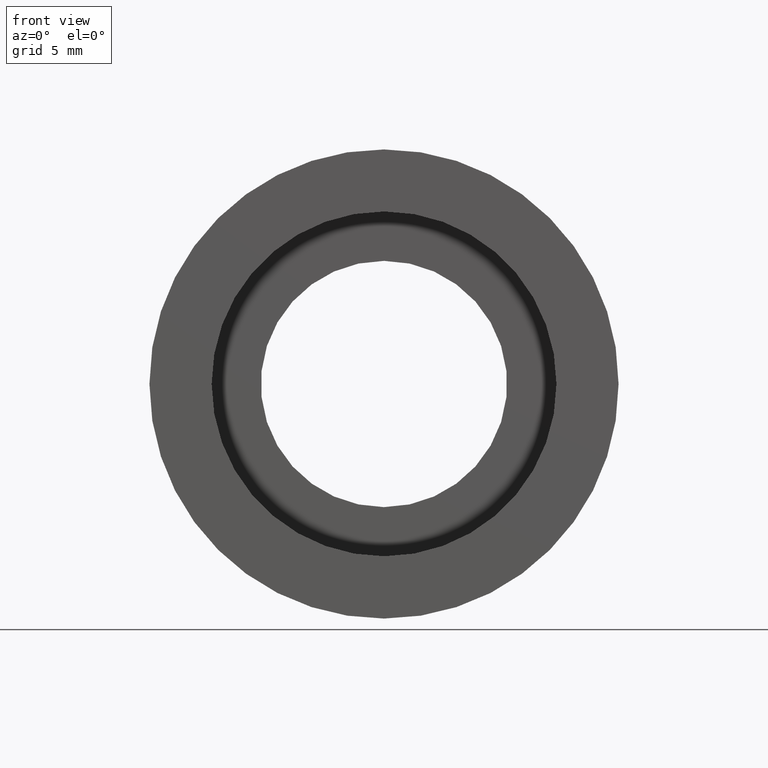
[diagram: clean part render]
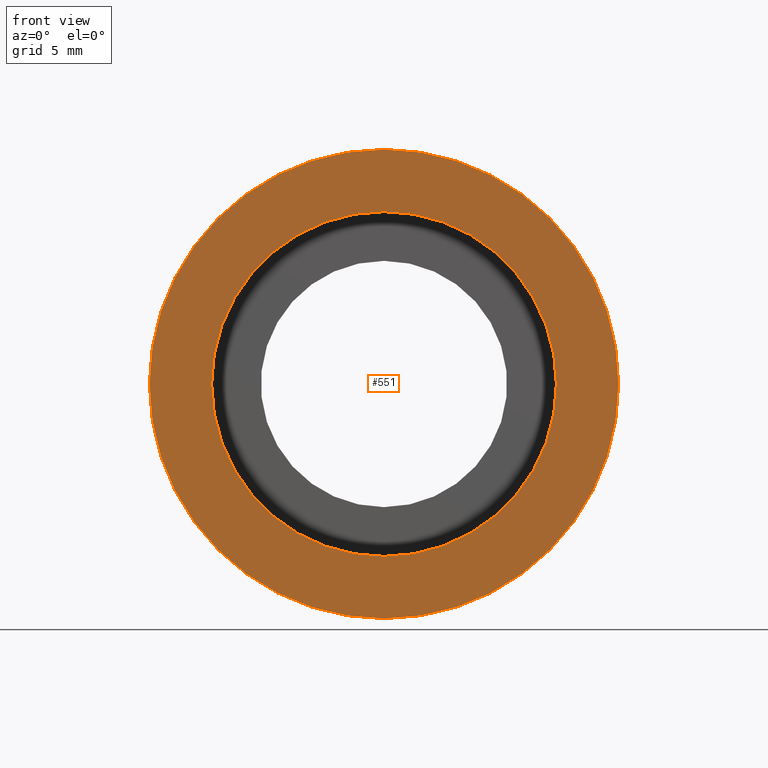
[diagram: same view with one face highlighted and labeled with its STEP entity id]
A machine part, front view. The second image highlights one B-rep face of the part: STEP entity #551.
In plain terms, the highlighted planar face has unit normal (-0, 1, 0).
Its self-contained STEP definition (entity closure, byte-faithful):
#4 = DIRECTION ( 'NONE',  ( -0.0000000000000000000, 1.000000000000000000, -0.0000000000000000000 ) ) ;
#17 = VERTEX_POINT ( 'NONE', #549 ) ;
#67 = DIRECTION ( 'NONE',  ( 0.0000000000000000000, 0.0000000000000000000, 1.000000000000000000 ) ) ;
#69 = ORIENTED_EDGE ( 'NONE', *, *, #465, .F. ) ;
#80 = AXIS2_PLACEMENT_3D ( 'NONE', #567, #571, #577 ) ;
#111 = VERTEX_POINT ( 'NONE', #317 ) ;
#115 = CARTESIAN_POINT ( 'NONE',  ( 7.000000000000019500, -1.650046791174882700E-014, 0.0000000000000000000 ) ) ;
#139 = CARTESIAN_POINT ( 'NONE',  ( 0.0000000000000000000, -2.775557561562891400E-014, 0.0000000000000000000 ) ) ;
#149 = CIRCLE ( 'NONE', #80, 7.000000000000019500 ) ;
#176 = ORIENTED_EDGE ( 'NONE', *, *, #387, .T. ) ;
#203 = EDGE_CURVE ( 'NONE', #538, #17, #575, .T. ) ;
#223 = CARTESIAN_POINT ( 'NONE',  ( 0.0000000000000000000, -2.775557561562891400E-014, 0.0000000000000000000 ) ) ;
#225 = DIRECTION ( 'NONE',  ( -0.0000000000000000000, 1.000000000000000000, -0.0000000000000000000 ) ) ;
#244 = EDGE_LOOP ( 'NONE', ( #176, #612 ) ) ;
#257 = CIRCLE ( 'NONE', #533, 9.525000000000019900 ) ;
#269 = CARTESIAN_POINT ( 'NONE',  ( 0.0000000000000000000, -2.775557561562891400E-014, 0.0000000000000000000 ) ) ;
#273 = DIRECTION ( 'NONE',  ( 0.0000000000000000000, 0.0000000000000000000, 1.000000000000000000 ) ) ;
#296 = DIRECTION ( 'NONE',  ( -0.0000000000000000000, 1.000000000000000000, -0.0000000000000000000 ) ) ;
#307 = CIRCLE ( 'NONE', #344, 9.525000000000019900 ) ;
#310 = DIRECTION ( 'NONE',  ( -0.0000000000000000000, 1.000000000000000000, 0.0000000000000000000 ) ) ;
#317 = CARTESIAN_POINT ( 'NONE',  ( 1.166476076187856400E-015, -2.775557561562891400E-014, -9.525000000000019900 ) ) ;
#340 = EDGE_LOOP ( 'NONE', ( #536, #69 ) ) ;
#344 = AXIS2_PLACEMENT_3D ( 'NONE', #139, #296, #67 ) ;
#365 = EDGE_CURVE ( 'NONE', #444, #111, #257, .T. ) ;
#369 = FACE_OUTER_BOUND ( 'NONE', #340, .T. ) ;
#387 = EDGE_CURVE ( 'NONE', #17, #538, #149, .T. ) ;
#393 = PLANE ( 'NONE',  #541 ) ;
#397 = DIRECTION ( 'NONE',  ( 0.0000000000000000000, 0.0000000000000000000, 1.000000000000000000 ) ) ;
#411 = FACE_BOUND ( 'NONE', #244, .T. ) ;
#414 = AXIS2_PLACEMENT_3D ( 'NONE', #223, #225, #581 ) ;
#444 = VERTEX_POINT ( 'NONE', #493 ) ;
#465 = EDGE_CURVE ( 'NONE', #111, #444, #307, .T. ) ;
#479 = CARTESIAN_POINT ( 'NONE',  ( 8.572527594031495900E-016, -2.775557561562891400E-014, -7.000000000000019500 ) ) ;
#493 = CARTESIAN_POINT ( 'NONE',  ( 0.0000000000000000000, -2.775557561562891400E-014, 9.525000000000019900 ) ) ;
#533 = AXIS2_PLACEMENT_3D ( 'NONE', #269, #4, #273 ) ;
#536 = ORIENTED_EDGE ( 'NONE', *, *, #365, .F. ) ;
#538 = VERTEX_POINT ( 'NONE', #479 ) ;
#541 = AXIS2_PLACEMENT_3D ( 'NONE', #115, #310, #397 ) ;
#549 = CARTESIAN_POINT ( 'NONE',  ( 0.0000000000000000000, -2.775557561562891400E-014, 7.000000000000019500 ) ) ;
#551 = ADVANCED_FACE ( 'NONE', ( #369, #411 ), #393, .F. ) ;
#567 = CARTESIAN_POINT ( 'NONE',  ( 0.0000000000000000000, -2.775557561562891400E-014, 0.0000000000000000000 ) ) ;
#571 = DIRECTION ( 'NONE',  ( -0.0000000000000000000, 1.000000000000000000, -0.0000000000000000000 ) ) ;
#575 = CIRCLE ( 'NONE', #414, 7.000000000000019500 ) ;
#577 = DIRECTION ( 'NONE',  ( 0.0000000000000000000, 0.0000000000000000000, 1.000000000000000000 ) ) ;
#581 = DIRECTION ( 'NONE',  ( 0.0000000000000000000, 0.0000000000000000000, 1.000000000000000000 ) ) ;
#612 = ORIENTED_EDGE ( 'NONE', *, *, #203, .T. ) ;